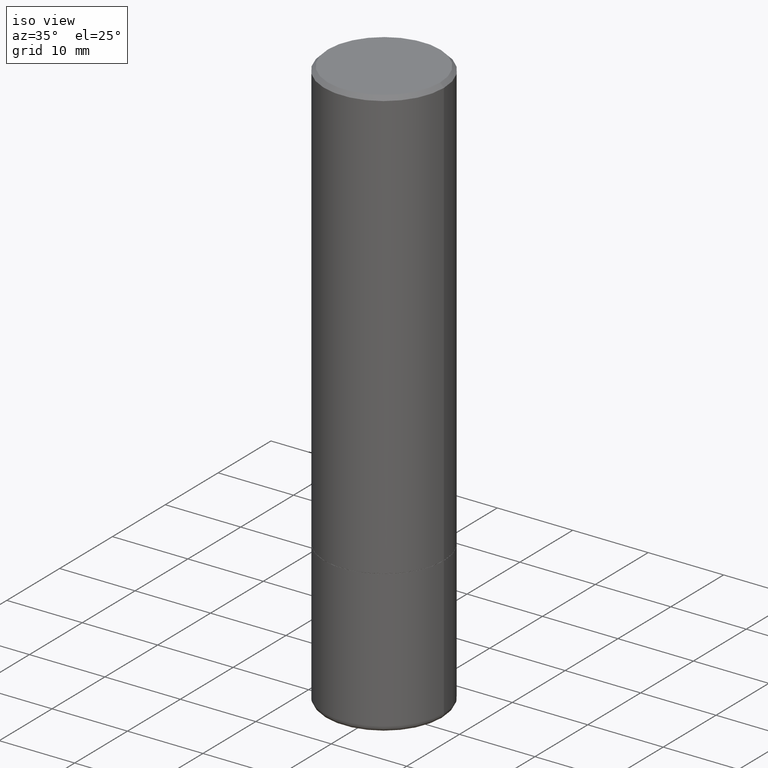
[diagram: clean part render]
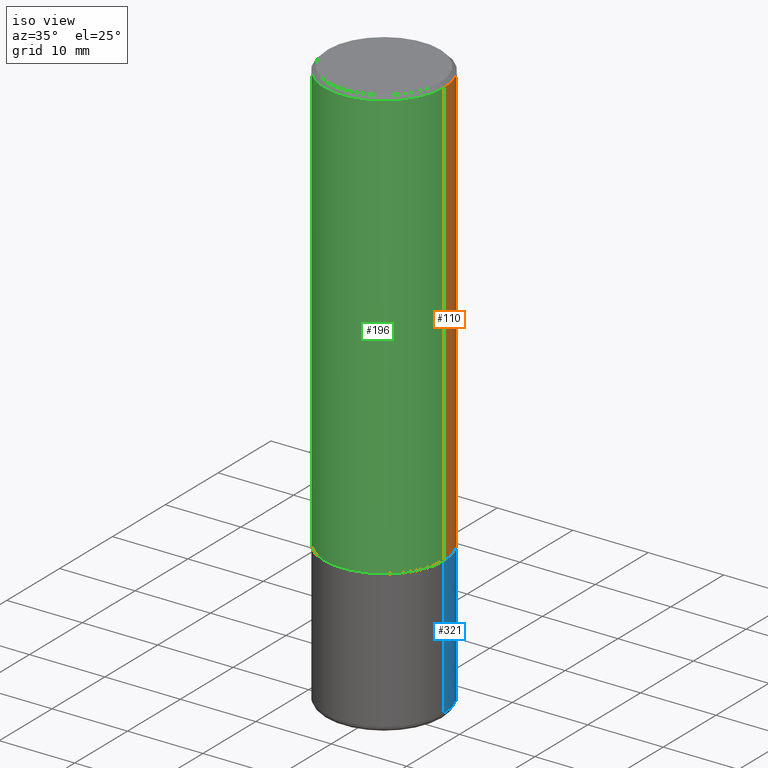
[diagram: same view with three faces highlighted in distinct colors, each labeled with its STEP entity id]
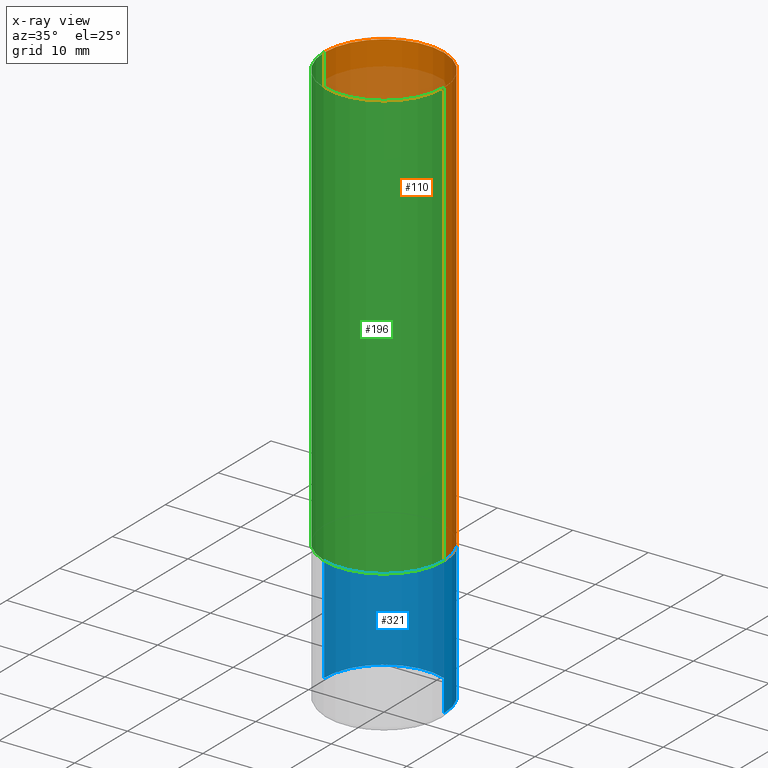
[diagram: x-ray of the same camera — body ghosted, the three highlighted faces saturated]
A machine part, iso view with three faces highlighted in distinct colors.
The next image is the same camera in x-ray (body ghosted, the three faces saturated) — at least one of them is partly hidden behind the body in this view.
Their STEP definitions:

[orange] entity #110 — the highlighted cylindrical surface (partial cylindrical patch) has radius 7.9375 mm, axis along (-0, 0, 1).
#17 = CARTESIAN_POINT ( 'NONE',  ( 0.3124999999999998890, -2.182175836776957558E-15, 1.523805242436229235E-29 ) ) ;
#20 = CARTESIAN_POINT ( 'NONE',  ( -0.3124999999999998890, 2.220446049250312292E-15, -1.537167215704657391E-29 ) ) ;
#24 = DIRECTION ( 'NONE',  ( -2.445468806185136597E-29, 3.491481338843145583E-15, 1.000000000000000000 ) ) ;
#47 = DIRECTION ( 'NONE',  ( -2.445468806185136597E-29, 3.491481338843145583E-15, 1.000000000000000000 ) ) ;
#55 = CARTESIAN_POINT ( 'NONE',  ( 0.3124999999999998335, -2.213735251080465334E-15, -0.02000000000000005246 ) ) ;
#61 = VERTEX_POINT ( 'NONE', #314 ) ;
#74 = AXIS2_PLACEMENT_3D ( 'NONE', #353, #47, #192 ) ;
#78 = DIRECTION ( 'NONE',  ( 1.000000000000000000, -6.982962677686265133E-15, 0.000000000000000000 ) ) ;
#81 = CYLINDRICAL_SURFACE ( 'NONE', #74, 0.3124999999999998890 ) ;
#84 = AXIS2_PLACEMENT_3D ( 'NONE', #316, #383, #78 ) ;
#97 = ORIENTED_EDGE ( 'NONE', *, *, #279, .F. ) ;
#100 = EDGE_LOOP ( 'NONE', ( #101, #406, #280, #97 ) ) ;
#101 = ORIENTED_EDGE ( 'NONE', *, *, #111, .T. ) ;
#110 = ADVANCED_FACE ( 'NONE', ( #219 ), #81, .T. ) ;
#111 = EDGE_CURVE ( 'NONE', #146, #61, #168, .T. ) ;
#146 = VERTEX_POINT ( 'NONE', #334 ) ;
#168 = CIRCLE ( 'NONE', #84, 0.3125000000000000000 ) ;
#172 = DIRECTION ( 'NONE',  ( 1.000000000000000000, -6.982962677686265133E-15, 0.000000000000000000 ) ) ;
#192 = DIRECTION ( 'NONE',  ( 1.000000000000000000, -6.982962677686266711E-15, 4.876176775795935232E-29 ) ) ;
#194 = DIRECTION ( 'NONE',  ( -2.445468806185136877E-29, 3.491481338843145188E-15, 1.000000000000000000 ) ) ;
#199 = DIRECTION ( 'NONE',  ( -2.445468806185136877E-29, 3.491481338843145188E-15, 1.000000000000000000 ) ) ;
#206 = CIRCLE ( 'NONE', #329, 0.3124999999999998335 ) ;
#219 = FACE_OUTER_BOUND ( 'NONE', #100, .T. ) ;
#236 = CARTESIAN_POINT ( 'NONE',  ( -0.3124999999999998335, 2.112346210000093866E-15, -0.02000000000000005246 ) ) ;
#263 = CARTESIAN_POINT ( 'NONE',  ( 4.890937612370285420E-31, -6.982962677686308865E-17, -0.02000000000000005246 ) ) ;
#279 = EDGE_CURVE ( 'NONE', #146, #433, #423, .T. ) ;
#280 = ORIENTED_EDGE ( 'NONE', *, *, #429, .F. ) ;
#292 = VECTOR ( 'NONE', #199, 39.37007874015748143 ) ;
#314 = CARTESIAN_POINT ( 'NONE',  ( -0.3125000000000000000, -1.740639529667233725E-15, -2.249000000000000110 ) ) ;
#316 = CARTESIAN_POINT ( 'NONE',  ( 5.499859345110372861E-29, -7.852341531058235441E-15, -2.249000000000000110 ) ) ;
#329 = AXIS2_PLACEMENT_3D ( 'NONE', #263, #24, #172 ) ;
#334 = CARTESIAN_POINT ( 'NONE',  ( 0.3125000000000000000, -1.003451736783519379E-14, -2.249000000000000110 ) ) ;
#340 = VECTOR ( 'NONE', #194, 39.37007874015748143 ) ;
#353 = CARTESIAN_POINT ( 'NONE',  ( 0.000000000000000000, 0.000000000000000000, 0.000000000000000000 ) ) ;
#383 = DIRECTION ( 'NONE',  ( -2.445468806185136597E-29, 3.491481338843145583E-15, 1.000000000000000000 ) ) ;
#399 = VERTEX_POINT ( 'NONE', #236 ) ;
#406 = ORIENTED_EDGE ( 'NONE', *, *, #440, .T. ) ;
#423 = LINE ( 'NONE', #17, #340 ) ;
#428 = LINE ( 'NONE', #20, #292 ) ;
#429 = EDGE_CURVE ( 'NONE', #433, #399, #206, .T. ) ;
#433 = VERTEX_POINT ( 'NONE', #55 ) ;
#440 = EDGE_CURVE ( 'NONE', #61, #399, #428, .T. ) ;

[blue] entity #321 — the highlighted cylindrical surface (partial cylindrical patch) has radius 7.9375 mm, axis along (-0, 0, 1).
#5 = DIRECTION ( 'NONE',  ( 1.000000000000000000, -6.982962677686269077E-15, 0.000000000000000000 ) ) ;
#14 = VECTOR ( 'NONE', #173, 39.37007874015748143 ) ;
#23 = CARTESIAN_POINT ( 'NONE',  ( -0.3125000000000000000, 2.220446049250313081E-15, -1.537167215704658232E-29 ) ) ;
#49 = CIRCLE ( 'NONE', #223, 0.3125000000000000000 ) ;
#53 = CARTESIAN_POINT ( 'NONE',  ( 5.502304813916558464E-29, -7.855833012397078448E-15, -2.250000000000000444 ) ) ;
#72 = VERTEX_POINT ( 'NONE', #421 ) ;
#86 = CARTESIAN_POINT ( 'NONE',  ( 0.3125000000000000000, -1.003800884917403837E-14, -2.250000000000000444 ) ) ;
#91 = DIRECTION ( 'NONE',  ( 1.000000000000000000, -6.982962677686269077E-15, 0.000000000000000000 ) ) ;
#106 = CIRCLE ( 'NONE', #286, 0.3125000000000000000 ) ;
#116 = AXIS2_PLACEMENT_3D ( 'NONE', #387, #305, #312 ) ;
#126 = CARTESIAN_POINT ( 'NONE',  ( 0.3125000000000000000, -1.255187541314110291E-14, -2.970000000000000195 ) ) ;
#139 = EDGE_CURVE ( 'NONE', #430, #243, #267, .T. ) ;
#147 = EDGE_CURVE ( 'NONE', #72, #216, #336, .T. ) ;
#173 = DIRECTION ( 'NONE',  ( -2.445468806185136877E-29, 3.491481338843145188E-15, 1.000000000000000000 ) ) ;
#216 = VERTEX_POINT ( 'NONE', #274 ) ;
#218 = EDGE_LOOP ( 'NONE', ( #327, #347, #377, #307 ) ) ;
#223 = AXIS2_PLACEMENT_3D ( 'NONE', #224, #355, #5 ) ;
#224 = CARTESIAN_POINT ( 'NONE',  ( 7.263042354369856275E-29, -1.036969957636414298E-14, -2.970000000000000195 ) ) ;
#243 = VERTEX_POINT ( 'NONE', #86 ) ;
#248 = FACE_OUTER_BOUND ( 'NONE', #218, .T. ) ;
#261 = EDGE_CURVE ( 'NONE', #243, #216, #106, .T. ) ;
#267 = LINE ( 'NONE', #328, #14 ) ;
#274 = CARTESIAN_POINT ( 'NONE',  ( -0.3125000000000000000, -6.892320245130297635E-15, -2.250000000000000444 ) ) ;
#286 = AXIS2_PLACEMENT_3D ( 'NONE', #53, #396, #91 ) ;
#290 = DIRECTION ( 'NONE',  ( -2.445468806185136877E-29, 3.491481338843145188E-15, 1.000000000000000000 ) ) ;
#305 = DIRECTION ( 'NONE',  ( -2.445468806185136597E-29, 3.491481338843145583E-15, 1.000000000000000000 ) ) ;
#307 = ORIENTED_EDGE ( 'NONE', *, *, #139, .F. ) ;
#311 = EDGE_CURVE ( 'NONE', #430, #72, #49, .T. ) ;
#312 = DIRECTION ( 'NONE',  ( 1.000000000000000000, -6.982962677686266711E-15, 4.876176775795936353E-29 ) ) ;
#321 = ADVANCED_FACE ( 'NONE', ( #248 ), #352, .T. ) ;
#327 = ORIENTED_EDGE ( 'NONE', *, *, #311, .T. ) ;
#328 = CARTESIAN_POINT ( 'NONE',  ( 0.3125000000000000000, -2.182175836776958347E-15, 1.523805242436230075E-29 ) ) ;
#336 = LINE ( 'NONE', #23, #431 ) ;
#347 = ORIENTED_EDGE ( 'NONE', *, *, #147, .T. ) ;
#352 = CYLINDRICAL_SURFACE ( 'NONE', #116, 0.3125000000000000000 ) ;
#355 = DIRECTION ( 'NONE',  ( -2.445468806185136597E-29, 3.491481338843145583E-15, 1.000000000000000000 ) ) ;
#377 = ORIENTED_EDGE ( 'NONE', *, *, #261, .F. ) ;
#387 = CARTESIAN_POINT ( 'NONE',  ( 0.000000000000000000, 0.000000000000000000, 0.000000000000000000 ) ) ;
#396 = DIRECTION ( 'NONE',  ( -2.445468806185136597E-29, 3.491481338843145583E-15, 1.000000000000000000 ) ) ;
#421 = CARTESIAN_POINT ( 'NONE',  ( -0.3125000000000000000, -8.149253527113829903E-15, -2.970000000000000195 ) ) ;
#430 = VERTEX_POINT ( 'NONE', #126 ) ;
#431 = VECTOR ( 'NONE', #290, 39.37007874015748143 ) ;

[green] entity #196 — the highlighted cylindrical surface (partial cylindrical patch) has radius 7.9375 mm, axis along (-0, 0, 1).
#7 = CIRCLE ( 'NONE', #227, 0.3124999999999998335 ) ;
#8 = ORIENTED_EDGE ( 'NONE', *, *, #209, .T. ) ;
#16 = DIRECTION ( 'NONE',  ( -2.445468806185136597E-29, 3.491481338843145583E-15, 1.000000000000000000 ) ) ;
#17 = CARTESIAN_POINT ( 'NONE',  ( 0.3124999999999998890, -2.182175836776957558E-15, 1.523805242436229235E-29 ) ) ;
#18 = FACE_OUTER_BOUND ( 'NONE', #112, .T. ) ;
#20 = CARTESIAN_POINT ( 'NONE',  ( -0.3124999999999998890, 2.220446049250312292E-15, -1.537167215704657391E-29 ) ) ;
#32 = ORIENTED_EDGE ( 'NONE', *, *, #102, .F. ) ;
#42 = ORIENTED_EDGE ( 'NONE', *, *, #279, .T. ) ;
#55 = CARTESIAN_POINT ( 'NONE',  ( 0.3124999999999998335, -2.213735251080465334E-15, -0.02000000000000005246 ) ) ;
#61 = VERTEX_POINT ( 'NONE', #314 ) ;
#71 = DIRECTION ( 'NONE',  ( 1.000000000000000000, -6.982962677686265133E-15, 0.000000000000000000 ) ) ;
#102 = EDGE_CURVE ( 'NONE', #399, #433, #7, .T. ) ;
#107 = CARTESIAN_POINT ( 'NONE',  ( 4.890937612370285420E-31, -6.982962677686308865E-17, -0.02000000000000005246 ) ) ;
#112 = EDGE_LOOP ( 'NONE', ( #164, #8, #42, #32 ) ) ;
#114 = AXIS2_PLACEMENT_3D ( 'NONE', #287, #16, #155 ) ;
#121 = CYLINDRICAL_SURFACE ( 'NONE', #244, 0.3124999999999998890 ) ;
#146 = VERTEX_POINT ( 'NONE', #334 ) ;
#155 = DIRECTION ( 'NONE',  ( 1.000000000000000000, -6.982962677686265133E-15, 0.000000000000000000 ) ) ;
#162 = DIRECTION ( 'NONE',  ( 1.000000000000000000, -6.982962677686266711E-15, 4.876176775795935232E-29 ) ) ;
#164 = ORIENTED_EDGE ( 'NONE', *, *, #440, .F. ) ;
#194 = DIRECTION ( 'NONE',  ( -2.445468806185136877E-29, 3.491481338843145188E-15, 1.000000000000000000 ) ) ;
#196 = ADVANCED_FACE ( 'NONE', ( #18 ), #121, .T. ) ;
#199 = DIRECTION ( 'NONE',  ( -2.445468806185136877E-29, 3.491481338843145188E-15, 1.000000000000000000 ) ) ;
#209 = EDGE_CURVE ( 'NONE', #61, #146, #412, .T. ) ;
#226 = CARTESIAN_POINT ( 'NONE',  ( 0.000000000000000000, 0.000000000000000000, 0.000000000000000000 ) ) ;
#227 = AXIS2_PLACEMENT_3D ( 'NONE', #107, #247, #71 ) ;
#236 = CARTESIAN_POINT ( 'NONE',  ( -0.3124999999999998335, 2.112346210000093866E-15, -0.02000000000000005246 ) ) ;
#244 = AXIS2_PLACEMENT_3D ( 'NONE', #226, #357, #162 ) ;
#247 = DIRECTION ( 'NONE',  ( -2.445468806185136597E-29, 3.491481338843145583E-15, 1.000000000000000000 ) ) ;
#279 = EDGE_CURVE ( 'NONE', #146, #433, #423, .T. ) ;
#287 = CARTESIAN_POINT ( 'NONE',  ( 5.499859345110372861E-29, -7.852341531058235441E-15, -2.249000000000000110 ) ) ;
#292 = VECTOR ( 'NONE', #199, 39.37007874015748143 ) ;
#314 = CARTESIAN_POINT ( 'NONE',  ( -0.3125000000000000000, -1.740639529667233725E-15, -2.249000000000000110 ) ) ;
#334 = CARTESIAN_POINT ( 'NONE',  ( 0.3125000000000000000, -1.003451736783519379E-14, -2.249000000000000110 ) ) ;
#340 = VECTOR ( 'NONE', #194, 39.37007874015748143 ) ;
#357 = DIRECTION ( 'NONE',  ( -2.445468806185136597E-29, 3.491481338843145583E-15, 1.000000000000000000 ) ) ;
#399 = VERTEX_POINT ( 'NONE', #236 ) ;
#412 = CIRCLE ( 'NONE', #114, 0.3125000000000000000 ) ;
#423 = LINE ( 'NONE', #17, #340 ) ;
#428 = LINE ( 'NONE', #20, #292 ) ;
#433 = VERTEX_POINT ( 'NONE', #55 ) ;
#440 = EDGE_CURVE ( 'NONE', #61, #399, #428, .T. ) ;